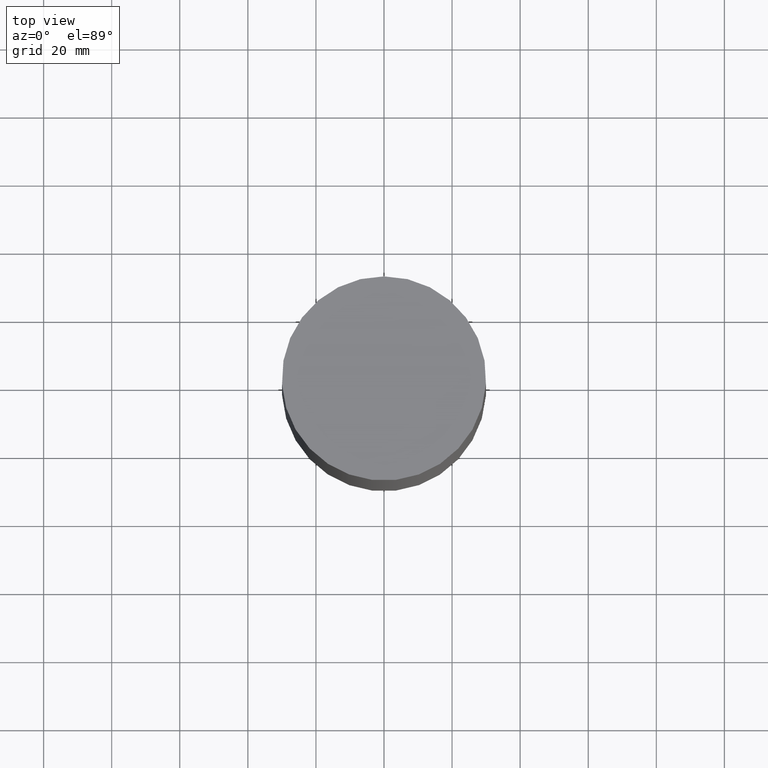
[diagram: clean part render]
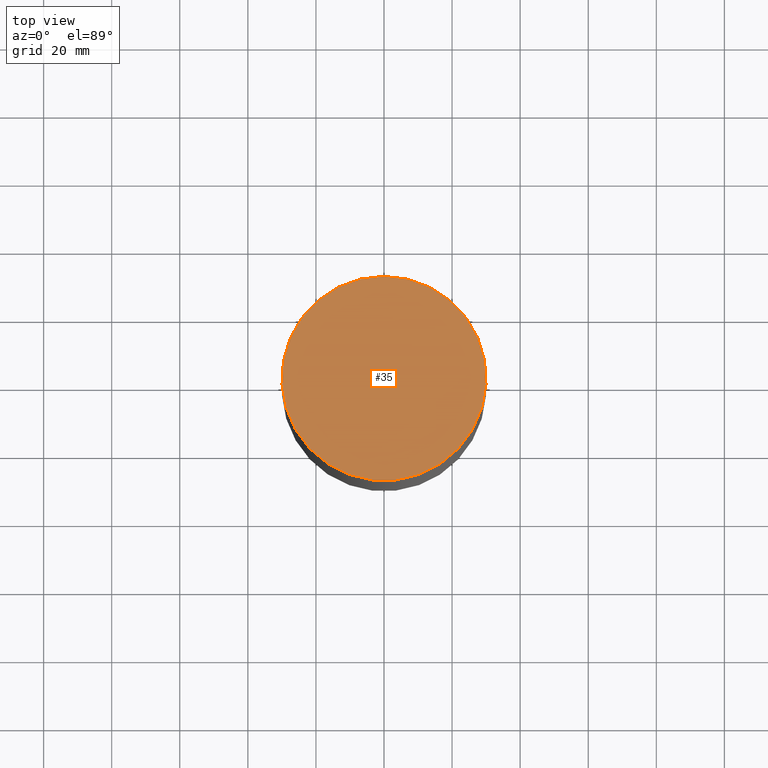
[diagram: same view with one face highlighted and labeled with its STEP entity id]
A machine part, top view. The second image highlights one B-rep face of the part: STEP entity #35.
In plain terms, the highlighted planar face has unit normal (-0, 0, 1).
Its self-contained STEP definition (entity closure, byte-faithful):
#35=ADVANCED_FACE('Unnamed[1]',(#77),#78,.T.);
#43=EDGE_CURVE('Unnamed[1]',#89,#89,#90,.T.);
#77=FACE_OUTER_BOUND('',#122,.T.);
#78=PLANE('',#123);
#89=VERTEX_POINT('',#137);
#90=CIRCLE('',#138,30.0);
#122=EDGE_LOOP('',(#168));
#123=AXIS2_PLACEMENT_3D('',#169,#170,#171);
#137=CARTESIAN_POINT('',(1.37054922468967E-030,30.0,-2.47477690329619E-014));
#138=AXIS2_PLACEMENT_3D('',#183,#184,#185);
#168=ORIENTED_EDGE('',*,*,#43,.T.);
#169=CARTESIAN_POINT('',(1.3373990328908E-030,15.0,-2.3023884516481E-014));
#170=DIRECTION('',(-6.12323399573677E-017,1.14925634432065E-016,1.0));
#171=DIRECTION('',(2.21001278659132E-033,1.0,-1.14925634432065E-016));
#183=CARTESIAN_POINT('',(1.74032777401202E-030,3.48065554802404E-030,-2.8421709430404E-014));
#184=DIRECTION('',(-6.12323399573677E-017,-1.22464679914747E-016,1.0));
#185=DIRECTION('',(-1.23259516440783E-032,1.0,1.22464679914747E-016));